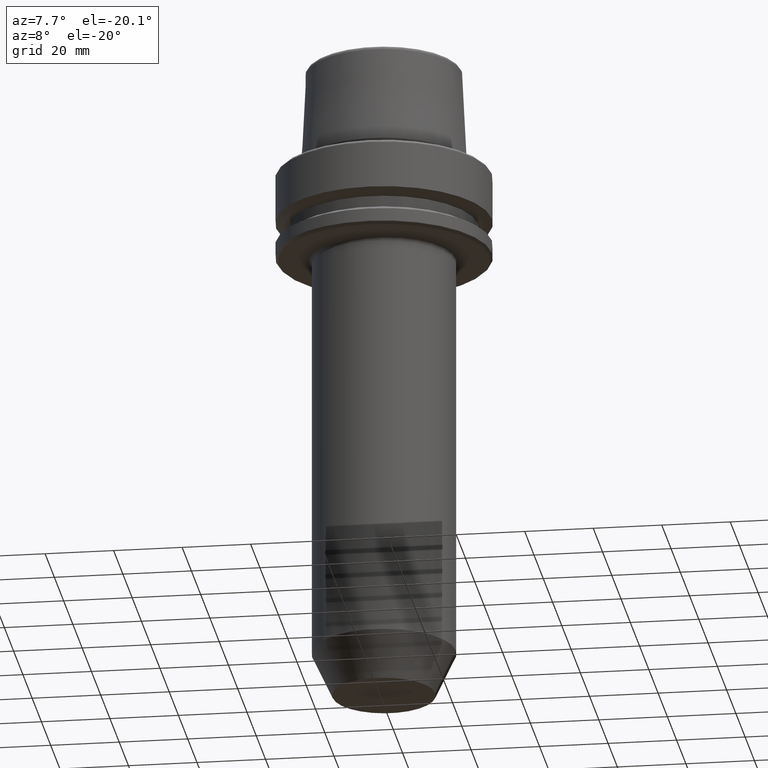
[diagram: clean part render]
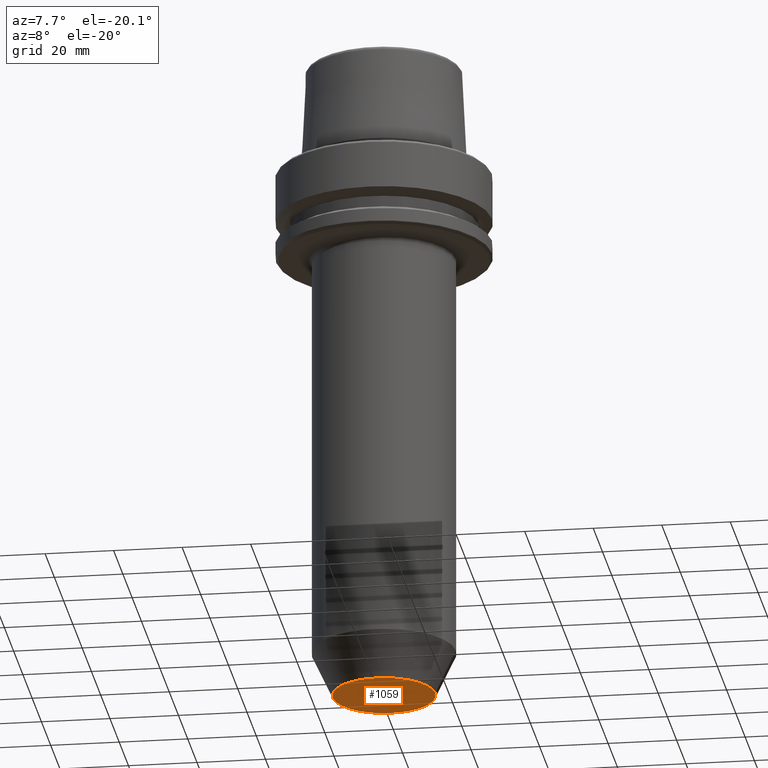
[diagram: same view with one face highlighted and labeled with its STEP entity id]
A machine part, auxiliary view. The second image highlights one B-rep face of the part: STEP entity #1059.
In plain terms, the highlighted planar face has unit normal (0, -0, 1).
Its self-contained STEP definition (entity closure, byte-faithful):
#173 = DIRECTION ( 'NONE',  ( 0.0000000000000000000, -0.0000000000000000000, 1.000000000000000000 ) ) ;
#256 = CIRCLE ( 'NONE', #1147, 15.00000000000000000 ) ;
#370 = FACE_OUTER_BOUND ( 'NONE', #1138, .T. ) ;
#432 = PLANE ( 'NONE',  #749 ) ;
#496 = CARTESIAN_POINT ( 'NONE',  ( 15.00000000000000000, 0.0000000000000000000, -160.0000000000000000 ) ) ;
#522 = CARTESIAN_POINT ( 'NONE',  ( 0.0000000000000000000, 15.00000000000000000, -160.0000000000000300 ) ) ;
#528 = AXIS2_PLACEMENT_3D ( 'NONE', #573, #1075, #879 ) ;
#554 = EDGE_CURVE ( 'NONE', #720, #1174, #1102, .T. ) ;
#566 = ORIENTED_EDGE ( 'NONE', *, *, #554, .F. ) ;
#573 = CARTESIAN_POINT ( 'NONE',  ( 0.0000000000000000000, 0.0000000000000000000, -160.0000000000000000 ) ) ;
#705 = DIRECTION ( 'NONE',  ( 1.000000000000000000, 0.0000000000000000000, 0.0000000000000000000 ) ) ;
#720 = VERTEX_POINT ( 'NONE', #822 ) ;
#749 = AXIS2_PLACEMENT_3D ( 'NONE', #522, #173, #705 ) ;
#822 = CARTESIAN_POINT ( 'NONE',  ( -15.00000000000000000, 2.204364238465235400E-015, -160.0000000000000000 ) ) ;
#879 = DIRECTION ( 'NONE',  ( 1.000000000000000000, 0.0000000000000000000, 0.0000000000000000000 ) ) ;
#952 = CARTESIAN_POINT ( 'NONE',  ( 0.0000000000000000000, 0.0000000000000000000, -160.0000000000000000 ) ) ;
#960 = DIRECTION ( 'NONE',  ( -0.0000000000000000000, -0.0000000000000000000, 1.000000000000000000 ) ) ;
#1059 = ADVANCED_FACE ( 'NONE', ( #370 ), #432, .F. ) ;
#1065 = ORIENTED_EDGE ( 'NONE', *, *, #1167, .F. ) ;
#1066 = DIRECTION ( 'NONE',  ( 1.000000000000000000, 0.0000000000000000000, 0.0000000000000000000 ) ) ;
#1075 = DIRECTION ( 'NONE',  ( -0.0000000000000000000, -0.0000000000000000000, 1.000000000000000000 ) ) ;
#1102 = CIRCLE ( 'NONE', #528, 15.00000000000000000 ) ;
#1138 = EDGE_LOOP ( 'NONE', ( #1065, #566 ) ) ;
#1147 = AXIS2_PLACEMENT_3D ( 'NONE', #952, #960, #1066 ) ;
#1167 = EDGE_CURVE ( 'NONE', #1174, #720, #256, .T. ) ;
#1174 = VERTEX_POINT ( 'NONE', #496 ) ;